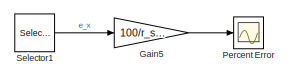
[diagram: root canvas - part 1/3, top right region]
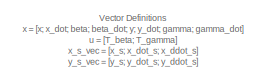
[diagram: root canvas - part 2/3, middle left region]
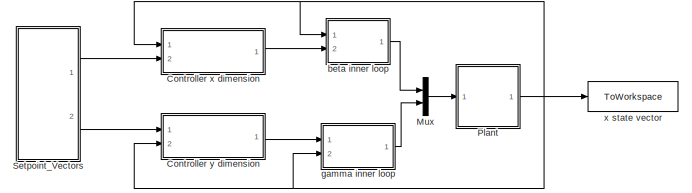
[diagram: root canvas - part 3/3, bottom left region]
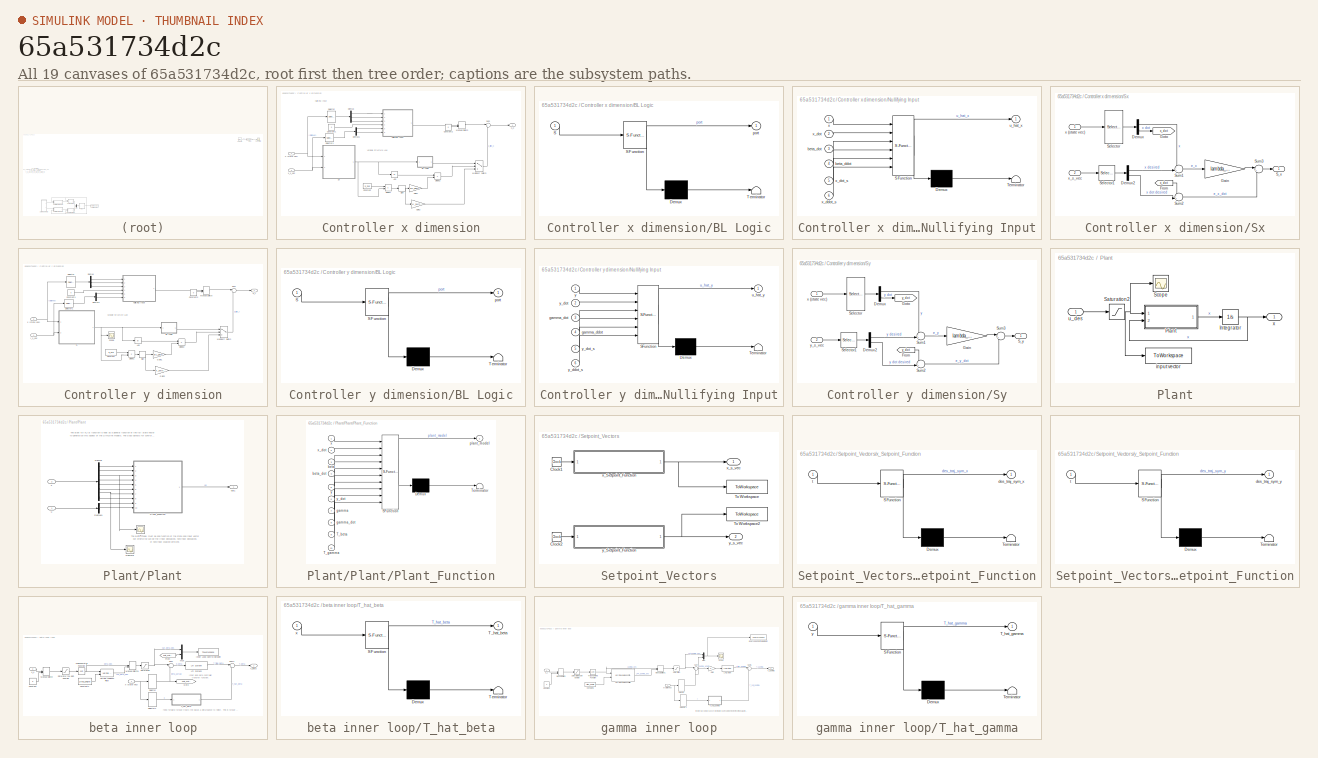
[diagram: thumbnail index - all 19 canvases of the model, root first then tree order]
MODEL slx_65a531734d2c
KIND model
CONFIG AbsTol = auto
CONFIG EnableMultiTasking = off
CONFIG FixedStep = auto
CONFIG MaxStep = auto
CONFIG MinStep = auto
CONFIG RelTol = 1e-9
CONFIG SampleTimeConstraint = Unconstrained
CONFIG SolverName = VariableStepAuto
CONFIG StartTime = 0.0
CONFIG StopTime = t_sim
BLOCK [SubSystem] Controller x dimension
  Ports = [2, 1]
  RequestExecContextInheritance = off
BLOCK [Abs] Controller x dimension/Abs
  SaturateOnIntegerOverflow = off
BLOCK [SubSystem] Controller x dimension/BL Logic
  ErrorFcn = Stateflow.Translate.translate
  PermitHierarchicalResolution = ExplicitOnly
  Ports = [1, 1]
  RequestExecContextInheritance = off
  SFBlockType = MATLAB Function
  TreatAsAtomicUnit = on
BLOCK [Demux] Controller x dimension/BL Logic/ Demux 
  Outputs = 1
  Ports = [1, 1]
BLOCK [S-Function] Controller x dimension/BL Logic/ SFunction 
  EnableBusSupport = on
  FunctionName = sf_sfun
  Parameters = S_BL_value
  PortCounts = [1 2]
  Ports = [1, 2]
  SFcnIsStateOwnerBlock = off
  SFunctionDeploymentMode = off
  Tag = Stateflow S-Function 12
BLOCK [Terminator] Controller x dimension/BL Logic/ Terminator 
BLOCK [Inport] Controller x dimension/BL Logic/S
BLOCK [Outport] Controller x dimension/BL Logic/port
BLOCK [Constant] Controller x dimension/Constant
  Value = b_Sxd
BLOCK [Constant] Controller x dimension/Constant1
  Value = 0
BLOCK [Constant] Controller x dimension/Constant2
  Value = 0
BLOCK [Demux] Controller x dimension/Demux
  Outputs = 3
  Ports = [1, 3]
BLOCK [Demux] Controller x dimension/Demux1
  Outputs = 2
  Ports = [1, 2]
BLOCK [Product] Controller x dimension/Divide1
  Inputs = **
  Ports = [2, 1]
BLOCK [Product] Controller x dimension/Divide2
  Inputs = **
  Ports = [2, 1]
BLOCK [Gain] Controller x dimension/Gain1
  Gain = -BL_gain
BLOCK [Gain] Controller x dimension/Gain2
  Gain = -K_switch
BLOCK [ManualSwitch] Controller x dimension/Manual Switch
BLOCK [MultiPortSwitch] Controller x dimension/Multiport Switch
  InputSameDT = off
  Inputs = 2
  Ports = [3, 1]
  SaturateOnIntegerOverflow = off
BLOCK [SubSystem] Controller x dimension/Nullifying Input
  ErrorFcn = Stateflow.Translate.translate
  PermitHierarchicalResolution = ExplicitOnly
  Ports = [6, 1]
  RequestExecContextInheritance = off
  SFBlockType = MATLAB Function
  TreatAsAtomicUnit = on
BLOCK [Demux] Controller x dimension/Nullifying Input/ Demux 
  Outputs = 1
  Ports = [1, 1]
BLOCK [S-Function] Controller x dimension/Nullifying Input/ SFunction 
  EnableBusSupport = on
  FunctionName = sf_sfun
  PortCounts = [6 2]
  Ports = [6, 2]
  SFcnIsStateOwnerBlock = off
  SFunctionDeploymentMode = off
  Tag = Stateflow S-Function 9
BLOCK [Terminator] Controller x dimension/Nullifying Input/ Terminator 
BLOCK [Inport] Controller x dimension/Nullifying Input/beta_ddot
  Port = 4
BLOCK [Inport] Controller x dimension/Nullifying Input/beta_dot
  Port = 3
BLOCK [Outport] Controller x dimension/Nullifying Input/u_hat_x
BLOCK [Inport] Controller x dimension/Nullifying Input/x
BLOCK [Inport] Controller x dimension/Nullifying Input/x_ddot_s
  Port = 6
BLOCK [Inport] Controller x dimension/Nullifying Input/x_dot
  Port = 2
BLOCK [Inport] Controller x dimension/Nullifying Input/x_dot_s
  Port = 5
BLOCK [Selector] Controller x dimension/Selector
  IndexOptions = Index vector (dialog)
  Indices = [1 2 4]
  InputPortWidth = 8
  OutputSizes = 1
  Ports = [1, 1]
BLOCK [Selector] Controller x dimension/Selector1
  IndexOptions = Index vector (dialog)
  Indices = [2 3]
  InputPortWidth = 3
  OutputSizes = 1
  Ports = [1, 1]
BLOCK [Signum] Controller x dimension/Sign
BLOCK [Sum] Controller x dimension/Sum
  Inputs = |++
  Ports = [2, 1]
BLOCK [SubSystem] Controller x dimension/Sx
  Ports = [2, 1]
  RequestExecContextInheritance = off
BLOCK [Demux] Controller x dimension/Sx/Demux
  Outputs = 2
  Ports = [1, 2]
BLOCK [Demux] Controller x dimension/Sx/Demux2
  Outputs = 2
  Ports = [1, 2]
BLOCK [From] Controller x dimension/Sx/From
  GotoTag = x_dot
BLOCK [Gain] Controller x dimension/Sx/Gain
  Gain = lambda_x_num
BLOCK [Goto] Controller x dimension/Sx/Goto
  GotoTag = x_dot
BLOCK [Outport] Controller x dimension/Sx/S_x
BLOCK [Selector] Controller x dimension/Sx/Selector
  IndexOptions = Index vector (dialog)
  Indices = [1 2]
  InputPortWidth = 8
  OutputSizes = 1
  Ports = [1, 1]
BLOCK [Selector] Controller x dimension/Sx/Selector1
  IndexOptions = Index vector (dialog)
  Indices = [1 2]
  InputPortWidth = 3
  OutputSizes = 1
  Ports = [1, 1]
BLOCK [Sum] Controller x dimension/Sx/Sum1
  Inputs = -+|
  Ports = [2, 1]
BLOCK [Sum] Controller x dimension/Sx/Sum2
  Inputs = -+|
  Ports = [2, 1]
BLOCK [Sum] Controller x dimension/Sx/Sum3
  Inputs = |++
  Ports = [2, 1]
BLOCK [Inport] Controller x dimension/Sx/x (state vec)
BLOCK [Inport] Controller x dimension/Sx/x_s_vec
  Port = 2
BLOCK [Outport] Controller x dimension/u_x
BLOCK [Inport] Controller x dimension/x (state vec)
BLOCK [Inport] Controller x dimension/x_s_vec
  Port = 2
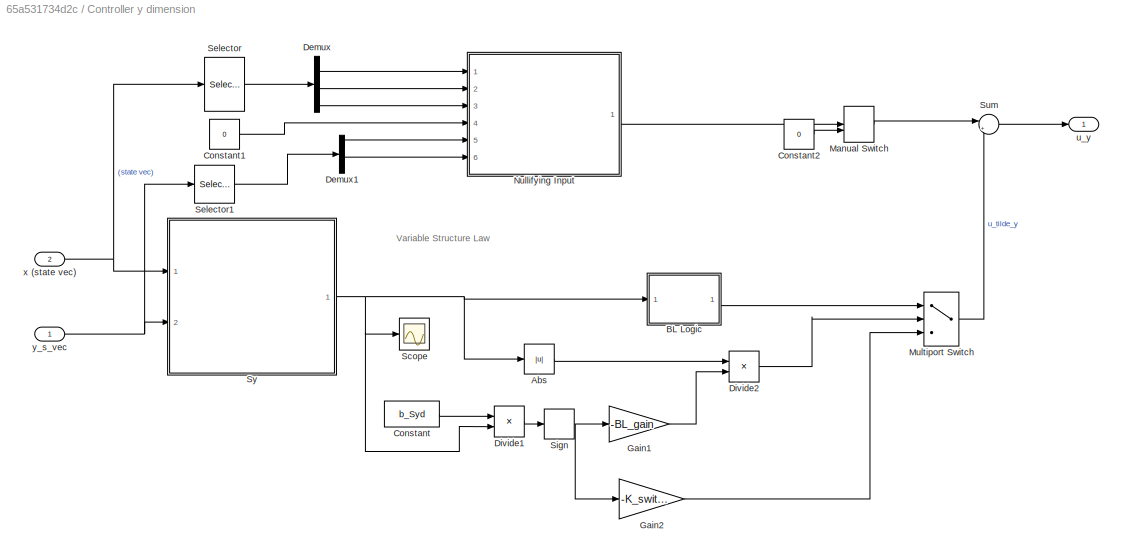
BLOCK [SubSystem] Controller y dimension
  NameLocation = top
  Ports = [2, 1]
  RequestExecContextInheritance = off
BLOCK [Abs] Controller y dimension/Abs
  SaturateOnIntegerOverflow = off
BLOCK [SubSystem] Controller y dimension/BL Logic
  ErrorFcn = Stateflow.Translate.translate
  PermitHierarchicalResolution = ExplicitOnly
  Ports = [1, 1]
  RequestExecContextInheritance = off
  SFBlockType = MATLAB Function
  TreatAsAtomicUnit = on
BLOCK [Demux] Controller y dimension/BL Logic/ Demux 
  Outputs = 1
  Ports = [1, 1]
BLOCK [S-Function] Controller y dimension/BL Logic/ SFunction 
  EnableBusSupport = on
  FunctionName = sf_sfun
  Parameters = S_BL_value
  PortCounts = [1 2]
  Ports = [1, 2]
  SFcnIsStateOwnerBlock = off
  SFunctionDeploymentMode = off
  Tag = Stateflow S-Function 7
BLOCK [Terminator] Controller y dimension/BL Logic/ Terminator 
BLOCK [Inport] Controller y dimension/BL Logic/S
BLOCK [Outport] Controller y dimension/BL Logic/port
BLOCK [Constant] Controller y dimension/Constant
  Value = b_Syd
BLOCK [Constant] Controller y dimension/Constant1
  Value = 0
BLOCK [Constant] Controller y dimension/Constant2
  Value = 0
BLOCK [Demux] Controller y dimension/Demux
  Outputs = 3
  Ports = [1, 3]
BLOCK [Demux] Controller y dimension/Demux1
  Outputs = 2
  Ports = [1, 2]
BLOCK [Product] Controller y dimension/Divide1
  Inputs = **
  Ports = [2, 1]
BLOCK [Product] Controller y dimension/Divide2
  Inputs = **
  Ports = [2, 1]
BLOCK [Gain] Controller y dimension/Gain1
  Gain = -BL_gain
BLOCK [Gain] Controller y dimension/Gain2
  Gain = -K_switch
BLOCK [ManualSwitch] Controller y dimension/Manual Switch
BLOCK [MultiPortSwitch] Controller y dimension/Multiport Switch
  InputSameDT = off
  Inputs = 2
  Ports = [3, 1]
  SaturateOnIntegerOverflow = off
BLOCK [SubSystem] Controller y dimension/Nullifying Input
  ErrorFcn = Stateflow.Translate.translate
  PermitHierarchicalResolution = ExplicitOnly
  Ports = [6, 1]
  RequestExecContextInheritance = off
  SFBlockType = MATLAB Function
  TreatAsAtomicUnit = on
BLOCK [Demux] Controller y dimension/Nullifying Input/ Demux 
  Outputs = 1
  Ports = [1, 1]
BLOCK [S-Function] Controller y dimension/Nullifying Input/ SFunction 
  EnableBusSupport = on
  FunctionName = sf_sfun
  PortCounts = [6 2]
  Ports = [6, 2]
  SFcnIsStateOwnerBlock = off
  SFunctionDeploymentMode = off
  Tag = Stateflow S-Function 4
BLOCK [Terminator] Controller y dimension/Nullifying Input/ Terminator 
BLOCK [Inport] Controller y dimension/Nullifying Input/gamma_ddot
  Port = 4
BLOCK [Inport] Controller y dimension/Nullifying Input/gamma_dot
  Port = 3
BLOCK [Outport] Controller y dimension/Nullifying Input/u_hat_y
BLOCK [Inport] Controller y dimension/Nullifying Input/y
BLOCK [Inport] Controller y dimension/Nullifying Input/y_ddot_s
  Port = 6
BLOCK [Inport] Controller y dimension/Nullifying Input/y_dot
  Port = 2
BLOCK [Inport] Controller y dimension/Nullifying Input/y_dot_s
  Port = 5
BLOCK [Scope] Controller y dimension/Scope
  Floating = off
  NumInputPorts = 1
  Ports = [1]
  ScopeSpecificationString = Simulink.scopes.TimeScopeBlockCfg('CurrentConfiguration', extmgr.ConfigurationSet(extmgr.Configuration('Core','General UI',true),extmgr.Configuration('Core','Source UI',true),extmgr.Configuration('Sources','WiredSimulink',true,'DataLoggingVariableName','ScopeData1'),extmgr.Configuration('Visuals','Time Domain',true,'SerializedDisplays',{struct('MinYLimReal','-0.5677','MaxYLimReal','2.96406','YLabe...<+1432ch>
BLOCK [Selector] Controller y dimension/Selector
  IndexOptions = Index vector (dialog)
  Indices = [5 6 8]
  InputPortWidth = 8
  OutputSizes = 1
  Ports = [1, 1]
BLOCK [Selector] Controller y dimension/Selector1
  IndexOptions = Index vector (dialog)
  Indices = [2 3]
  InputPortWidth = 3
  OutputSizes = 1
  Ports = [1, 1]
BLOCK [Signum] Controller y dimension/Sign
BLOCK [Sum] Controller y dimension/Sum
  Inputs = |++
  Ports = [2, 1]
BLOCK [SubSystem] Controller y dimension/Sy
  Ports = [2, 1]
  RequestExecContextInheritance = off
BLOCK [Demux] Controller y dimension/Sy/Demux
  Outputs = 2
  Ports = [1, 2]
BLOCK [Demux] Controller y dimension/Sy/Demux2
  Outputs = 2
  Ports = [1, 2]
BLOCK [From] Controller y dimension/Sy/From
  GotoTag = y_dot
BLOCK [Gain] Controller y dimension/Sy/Gain
  Gain = lambda_x_num
BLOCK [Goto] Controller y dimension/Sy/Goto
  GotoTag = y_dot
BLOCK [Outport] Controller y dimension/Sy/S_y
BLOCK [Selector] Controller y dimension/Sy/Selector
  IndexOptions = Index vector (dialog)
  Indices = [5 6]
  InputPortWidth = 8
  OutputSizes = 1
  Ports = [1, 1]
BLOCK [Selector] Controller y dimension/Sy/Selector1
  IndexOptions = Index vector (dialog)
  Indices = [1 2]
  InputPortWidth = 3
  OutputSizes = 1
  Ports = [1, 1]
BLOCK [Sum] Controller y dimension/Sy/Sum1
  Inputs = -+|
  Ports = [2, 1]
BLOCK [Sum] Controller y dimension/Sy/Sum2
  Inputs = -+|
  Ports = [2, 1]
BLOCK [Sum] Controller y dimension/Sy/Sum3
  Inputs = |++
  Ports = [2, 1]
BLOCK [Inport] Controller y dimension/Sy/x (state vec)
BLOCK [Inport] Controller y dimension/Sy/y_s_vec
  Port = 2
BLOCK [Outport] Controller y dimension/u_y
BLOCK [Inport] Controller y dimension/x (state vec)
  Port = 2
BLOCK [Inport] Controller y dimension/y_s_vec
BLOCK [Gain] Gain5
  Commented = on
  Gain = 100/r_sim
BLOCK [Mux] Mux
  DisplayOption = bar
  Inputs = 2
  Ports = [2, 1]
BLOCK [Scope] Percent Error
  Commented = on
  Floating = off
  NumInputPorts = 1
  Ports = [1]
  ScopeSpecificationString = Simulink.scopes.TimeScopeBlockCfg('CurrentConfiguration', extmgr.ConfigurationSet(extmgr.Configuration('Core','General UI',true),extmgr.Configuration('Core','Source UI',true),extmgr.Configuration('Sources','WiredSimulink',true,'DataLoggingVariableName','ScopeData2'),extmgr.Configuration('Visuals','Time Domain',true,'SerializedDisplays',{struct('MinYLimReal','-1.29449','MaxYLimReal','1.86814','YLab...<+1556ch>
BLOCK [SubSystem] Plant
  Ports = [1, 1]
  RequestExecContextInheritance = off
BLOCK [Integrator] Plant/Integrator
  InitialCondition = x_0
  Ports = [1, 1]
BLOCK [SubSystem] Plant/Plant
  Ports = [2, 1]
  RequestExecContextInheritance = off
BLOCK [Scope] Plant/Plant/Beta
  Floating = off
  NumInputPorts = 1
  Ports = [1]
  ScopeSpecificationString = Simulink.scopes.TimeScopeBlockCfg('CurrentConfiguration', extmgr.ConfigurationSet(extmgr.Configuration('Core','General UI',true),extmgr.Configuration('Core','Source UI',true),extmgr.Configuration('Sources','WiredSimulink',true,'DataLoggingVariableName','ScopeData2'),extmgr.Configuration('Visuals','Time Domain',true,'SerializedDisplays',{struct('MinYLimReal','-0.09593','MaxYLimReal','0.09557','YLab...<+1391ch>
BLOCK [Demux] Plant/Plant/Demux
  Outputs = 8
  Ports = [1, 8]
BLOCK [Demux] Plant/Plant/Demux1
  Outputs = 2
  Ports = [1, 2]
BLOCK [Scope] Plant/Plant/Gamma
  Floating = off
  NumInputPorts = 1
  Ports = [1]
  ScopeSpecificationString = Simulink.scopes.TimeScopeBlockCfg('CurrentConfiguration', extmgr.ConfigurationSet(extmgr.Configuration('Core','General UI',true),extmgr.Configuration('Core','Source UI',true),extmgr.Configuration('Sources','WiredSimulink',true,'DataLoggingVariableName','ScopeData1'),extmgr.Configuration('Visuals','Time Domain',true),extmgr.Configuration('Tools','Plot Navigation',true),extmgr.Configuration('Tools',...<+40ch>
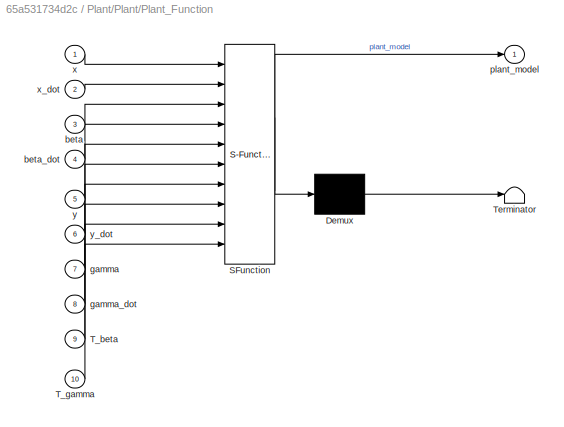
BLOCK [SubSystem] Plant/Plant/Plant_Function
  ErrorFcn = Stateflow.Translate.translate
  PermitHierarchicalResolution = ExplicitOnly
  Ports = [10, 1]
  RequestExecContextInheritance = off
  SFBlockType = MATLAB Function
  TreatAsAtomicUnit = on
BLOCK [Demux] Plant/Plant/Plant_Function/ Demux 
  Outputs = 1
  Ports = [1, 1]
BLOCK [S-Function] Plant/Plant/Plant_Function/ SFunction 
  EnableBusSupport = on
  FunctionName = sf_sfun
  PortCounts = [10 2]
  Ports = [10, 2]
  SFcnIsStateOwnerBlock = off
  SFunctionDeploymentMode = off
  Tag = Stateflow S-Function 1
BLOCK [Terminator] Plant/Plant/Plant_Function/ Terminator 
BLOCK [Inport] Plant/Plant/Plant_Function/T_beta
  Port = 9
BLOCK [Inport] Plant/Plant/Plant_Function/T_gamma
  Port = 10
BLOCK [Inport] Plant/Plant/Plant_Function/beta
  Port = 3
BLOCK [Inport] Plant/Plant/Plant_Function/beta_dot
  Port = 4
BLOCK [Inport] Plant/Plant/Plant_Function/gamma
  Port = 7
BLOCK [Inport] Plant/Plant/Plant_Function/gamma_dot
  Port = 8
BLOCK [Outport] Plant/Plant/Plant_Function/plant_model
BLOCK [Inport] Plant/Plant/Plant_Function/x
BLOCK [Inport] Plant/Plant/Plant_Function/x_dot
  Port = 2
BLOCK [Inport] Plant/Plant/Plant_Function/y
  Port = 5
BLOCK [Inport] Plant/Plant/Plant_Function/y_dot
  Port = 6
BLOCK [Outport] Plant/Plant/out1
BLOCK [Inport] Plant/Plant/u
BLOCK [Inport] Plant/Plant/x
  Port = 2
BLOCK [Saturate] Plant/Saturation2
  LowerLimit = -Tmax
  UpperLimit = Tmax
  ZeroCross = off
BLOCK [Scope] Plant/Scope
  Floating = off
  NumInputPorts = 1
  Ports = [1]
  ScopeSpecificationString = Simulink.scopes.TimeScopeBlockCfg('CurrentConfiguration', extmgr.ConfigurationSet(extmgr.Configuration('Core','General UI',true),extmgr.Configuration('Core','Source UI',true),extmgr.Configuration('Sources','WiredSimulink',true,'DataLoggingVariableName','ScopeData4'),extmgr.Configuration('Visuals','Time Domain',true,'SerializedDisplays',{struct('MinYLimReal','-1.875','MaxYLimReal','1.875','YLabelRe...<+1700ch>
BLOCK [ToWorkspace] Plant/input vector
  FixptAsFi = on
  MaxDataPoints = inf
  Ports = [1]
  SampleTime = -1
  VariableName = u
BLOCK [Inport] Plant/u_des
BLOCK [Outport] Plant/x
BLOCK [Selector] Selector1
  Commented = on
  IndexOptions = Index vector (dialog)
  Indices = [1]
  InputPortWidth = 5
  OutputSizes = 1
  Ports = [1, 1]
BLOCK [SubSystem] Setpoint_Vectors
  Ports = [0, 2]
  RequestExecContextInheritance = off
BLOCK [Clock] Setpoint_Vectors/Clock1
BLOCK [Clock] Setpoint_Vectors/Clock2
BLOCK [ToWorkspace] Setpoint_Vectors/To Workspace
  FixptAsFi = on
  MaxDataPoints = inf
  Ports = [1]
  SampleTime = -1
  VariableName = x_s_vec
BLOCK [ToWorkspace] Setpoint_Vectors/To Workspace2
  FixptAsFi = on
  MaxDataPoints = inf
  Ports = [1]
  SampleTime = -1
  VariableName = y_s_vec
BLOCK [SubSystem] Setpoint_Vectors/x_Setpoint_Function
  ErrorFcn = Stateflow.Translate.translate
  PermitHierarchicalResolution = ExplicitOnly
  Ports = [1, 1]
  RequestExecContextInheritance = off
  SFBlockType = MATLAB Function
  TreatAsAtomicUnit = on
BLOCK [Demux] Setpoint_Vectors/x_Setpoint_Function/ Demux 
  Outputs = 1
  Ports = [1, 1]
BLOCK [S-Function] Setpoint_Vectors/x_Setpoint_Function/ SFunction 
  EnableBusSupport = on
  FunctionName = sf_sfun
  PortCounts = [1 2]
  Ports = [1, 2]
  SFcnIsStateOwnerBlock = off
  SFunctionDeploymentMode = off
  Tag = Stateflow S-Function 2
BLOCK [Terminator] Setpoint_Vectors/x_Setpoint_Function/ Terminator 
BLOCK [Outport] Setpoint_Vectors/x_Setpoint_Function/des_traj_sym_x
BLOCK [Inport] Setpoint_Vectors/x_Setpoint_Function/t
BLOCK [Outport] Setpoint_Vectors/x_s_vec
BLOCK [SubSystem] Setpoint_Vectors/y_Setpoint_Function
  ErrorFcn = Stateflow.Translate.translate
  PermitHierarchicalResolution = ExplicitOnly
  Ports = [1, 1]
  RequestExecContextInheritance = off
  SFBlockType = MATLAB Function
  TreatAsAtomicUnit = on
BLOCK [Demux] Setpoint_Vectors/y_Setpoint_Function/ Demux 
  Outputs = 1
  Ports = [1, 1]
BLOCK [S-Function] Setpoint_Vectors/y_Setpoint_Function/ SFunction 
  EnableBusSupport = on
  FunctionName = sf_sfun
  PortCounts = [1 2]
  Ports = [1, 2]
  SFcnIsStateOwnerBlock = off
  SFunctionDeploymentMode = off
  Tag = Stateflow S-Function 3
BLOCK [Terminator] Setpoint_Vectors/y_Setpoint_Function/ Terminator 
BLOCK [Outport] Setpoint_Vectors/y_Setpoint_Function/des_traj_sym_y
BLOCK [Inport] Setpoint_Vectors/y_Setpoint_Function/t
BLOCK [Outport] Setpoint_Vectors/y_s_vec
  Port = 2
BLOCK [SubSystem] beta inner loop
  Ports = [2, 1]
  RequestExecContextInheritance = off
BLOCK [Constant] beta inner loop/Constant
  Value = 0
BLOCK [Constant] beta inner loop/Constant1
  Value = 1/tau_angle
BLOCK [From] beta inner loop/From
  GotoTag = beta_actual
BLOCK [Goto] beta inner loop/Goto
  GotoTag = beta_actual
BLOCK [ToWorkspace] beta inner loop/Inner Loop Control Setpoint
  FixptAsFi = on
  MaxDataPoints = inf
  Ports = [1]
  SampleTime = -1
  VariableName = ILC_beta
BLOCK [Reference] beta inner loop/LTI System  REF=cstblocks/LTI System
  Ports = [1, 1]
  SourceBlock = cstblocks/LTI System
  SourceProductBaseCode = CT
  SourceType = LTI Block
BLOCK [ManualSwitch] beta inner loop/Manual Switch
BLOCK [ManualSwitch] beta inner loop/Manual Switch1
  CurrentSetting = 0
BLOCK [Mux] beta inner loop/Mux
  DisplayOption = bar
  Inputs = 2
  Ports = [2, 1]
BLOCK [Saturate] beta inner loop/Saturate the asin domain
  LowerLimit = -1
  UpperLimit = 1
BLOCK [Saturate] beta inner loop/Saturation
  LowerLimit = -Angle_max
  UpperLimit = Angle_max
BLOCK [Selector] beta inner loop/Selector
  IndexOptions = Index vector (dialog)
  Indices = [3]
  InputPortWidth = 8
  OutputSizes = 1
  Ports = [1, 1]
BLOCK [Selector] beta inner loop/Selector1
  IndexOptions = Index vector (dialog)
  Indices = [1]
  InputPortWidth = 8
  OutputSizes = 1
  Ports = [1, 1]
BLOCK [Sum] beta inner loop/Sum
  Inputs = |+-
  Ports = [2, 1]
BLOCK [Sum] beta inner loop/Sum1
  Inputs = |++
  Ports = [2, 1]
BLOCK [Outport] beta inner loop/T_beta
BLOCK [SubSystem] beta inner loop/T_hat_beta
  ErrorFcn = Stateflow.Translate.translate
  PermitHierarchicalResolution = ExplicitOnly
  Ports = [1, 1]
  RequestExecContextInheritance = off
  SFBlockType = MATLAB Function
  TreatAsAtomicUnit = on
BLOCK [Demux] beta inner loop/T_hat_beta/ Demux 
  Outputs = 1
  Ports = [1, 1]
BLOCK [S-Function] beta inner loop/T_hat_beta/ SFunction 
  EnableBusSupport = on
  FunctionName = sf_sfun
  PortCounts = [1 2]
  Ports = [1, 2]
  SFcnIsStateOwnerBlock = off
  SFunctionDeploymentMode = off
  Tag = Stateflow S-Function 5
BLOCK [Terminator] beta inner loop/T_hat_beta/ Terminator 
BLOCK [Outport] beta inner loop/T_hat_beta/T_hat_beta
BLOCK [Inport] beta inner loop/T_hat_beta/x
BLOCK [Trigonometry] beta inner loop/Trigonometric Function
  Operator = asin
  Ports = [1, 1]
BLOCK [Reference] beta inner loop/Varying Lowpass Filter  REF=cstblocks/Linear Parameter Varying/Varying Lowpass Filter
  Ports = [2, 1]
  SourceBlock = cstblocks/Linear Parameter Varying/Varying Lowpass Filter
  SourceProductBaseCode = CT
  SourceType = Varying Lowpass Filter
BLOCK [Inport] beta inner loop/u_x
  Port = 2
BLOCK [Inport] beta inner loop/x (state vec)
BLOCK [SubSystem] gamma inner loop
  Ports = [2, 1]
  RequestExecContextInheritance = off
BLOCK [Constant] gamma inner loop/Constant
  Value = 0
BLOCK [Constant] gamma inner loop/Constant1
  Value = 1/tau_angle
BLOCK [Gain] gamma inner loop/Gain
BLOCK [ToWorkspace] gamma inner loop/Inner Loop Control Setpoint
  FixptAsFi = on
  MaxDataPoints = inf
  Ports = [1]
  SampleTime = -1
  VariableName = ILC_gamma
BLOCK [Reference] gamma inner loop/LTI System  REF=cstblocks/LTI System
  Ports = [1, 1]
  SourceBlock = cstblocks/LTI System
  SourceProductBaseCode = CT
  SourceType = LTI Block
BLOCK [ManualSwitch] gamma inner loop/Manual Switch
BLOCK [ManualSwitch] gamma inner loop/Manual Switch1
  CurrentSetting = 0
BLOCK [Mux] gamma inner loop/Mux
  DisplayOption = bar
  Inputs = 2
  Ports = [2, 1]
BLOCK [Saturate] gamma inner loop/Saturate the asin domain
  LowerLimit = -1
  UpperLimit = 1
BLOCK [Saturate] gamma inner loop/Saturation
  LowerLimit = -Angle_max
  UpperLimit = Angle_max
BLOCK [Scope] gamma inner loop/Scope
  Floating = off
  NumInputPorts = 1
  Ports = [1]
  ScopeSpecificationString = Simulink.scopes.TimeScopeBlockCfg('CurrentConfiguration', extmgr.ConfigurationSet(extmgr.Configuration('Core','General UI',true),extmgr.Configuration('Core','Source UI',true),extmgr.Configuration('Sources','WiredSimulink',true,'DataLoggingVariableName','ScopeData1'),extmgr.Configuration('Visuals','Time Domain',true,'SerializedDisplays',{struct('MinYLimReal','-0.33681','MaxYLimReal','0.29657','YLab...<+1459ch>
BLOCK [Selector] gamma inner loop/Selector
  IndexOptions = Index vector (dialog)
  Indices = [7]
  InputPortWidth = 8
  OutputSizes = 1
  Ports = [1, 1]
BLOCK [Selector] gamma inner loop/Selector1
  IndexOptions = Index vector (dialog)
  Indices = [5]
  InputPortWidth = 8
  OutputSizes = 1
  Ports = [1, 1]
BLOCK [Sum] gamma inner loop/Sum
  Inputs = |+-
  Ports = [2, 1]
BLOCK [Sum] gamma inner loop/Sum1
  Inputs = |++
  Ports = [2, 1]
BLOCK [Outport] gamma inner loop/T_gamma
BLOCK [SubSystem] gamma inner loop/T_hat_gamma
  ErrorFcn = Stateflow.Translate.translate
  PermitHierarchicalResolution = ExplicitOnly
  Ports = [1, 1]
  RequestExecContextInheritance = off
  SFBlockType = MATLAB Function
  TreatAsAtomicUnit = on
BLOCK [Demux] gamma inner loop/T_hat_gamma/ Demux 
  Outputs = 1
  Ports = [1, 1]
BLOCK [S-Function] gamma inner loop/T_hat_gamma/ SFunction 
  EnableBusSupport = on
  FunctionName = sf_sfun
  PortCounts = [1 2]
  Ports = [1, 2]
  SFcnIsStateOwnerBlock = off
  SFunctionDeploymentMode = off
  Tag = Stateflow S-Function 6
BLOCK [Terminator] gamma inner loop/T_hat_gamma/ Terminator 
BLOCK [Outport] gamma inner loop/T_hat_gamma/T_hat_gamma
BLOCK [Inport] gamma inner loop/T_hat_gamma/y
BLOCK [Trigonometry] gamma inner loop/Trigonometric Function
  Operator = asin
  Ports = [1, 1]
BLOCK [Reference] gamma inner loop/Varying Lowpass Filter  REF=cstblocks/Linear Parameter Varying/Varying Lowpass Filter
  Ports = [2, 1]
  SourceBlock = cstblocks/Linear Parameter Varying/Varying Lowpass Filter
  SourceProductBaseCode = CT
  SourceType = Varying Lowpass Filter
BLOCK [Inport] gamma inner loop/u_y
BLOCK [Inport] gamma inner loop/x (state vec)
  Port = 2
BLOCK [ToWorkspace] x state vector
  FixptAsFi = on
  MaxDataPoints = inf
  Ports = [1]
  SampleTime = -1
  VariableName = x
ANNOTATION (root): Vector Definitions x = [x; x_dot; beta; beta_dot; y; y_dot; gamma; gamma_dot] u = [T_beta; T_gamma] x_s_vec = [x_s; x_dot_s; x_ddot_s] y_s_vec = [y_s; y_dot_s; y_ddot_s]
ANNOTATION Controller x dimension: Compute Sliding Variable
ANNOTATION Controller x dimension: Nullifying Input
ANNOTATION Controller x dimension: Variable Structure Law
ANNOTATION Controller y dimension: Variable Structure Law
ANNOTATION Plant/Plant: The plant MATLAB function is kept as a general function of the full state vector to generalize this aspect of the Simulink models. The class objects for controllers must define this function in terms of all possible inputs. It is ok for certain inputs to be unused.
ANNOTATION Plant/Plant: The plant model must be and function of the state and input vector but otherwise can be the linear decoupled, nonlinear decoupled, or nonlinear coupled versions
ANNOTATION beta inner loop: Inner loop beta controller transfer function.
ANNOTATION beta inner loop: feed forward torque treats the ball as a disturbance to reject. This is torque is derived from the linear model.
ANNOTATION gamma inner loop: feed forward disturbance rejecting torque treats the moment from the ball acting on the plate as a disturbance
LINE Controller x dimension/Abs:1 -> Controller x dimension/Divide2:1
LINE Controller x dimension/BL Logic:1 -> Controller x dimension/Multiport Switch:1
LINE Controller x dimension/Constant1:1 -> Controller x dimension/Nullifying Input:4
LINE Controller x dimension/Constant2:1 -> Controller x dimension/Manual Switch:2
LINE Controller x dimension/Constant:1 -> Controller x dimension/Divide1:1
LINE Controller x dimension/Demux1:1 -> Controller x dimension/Nullifying Input:5
LINE Controller x dimension/Demux1:2 -> Controller x dimension/Nullifying Input:6
LINE Controller x dimension/Demux:1 -> Controller x dimension/Nullifying Input:1
LINE Controller x dimension/Demux:2 -> Controller x dimension/Nullifying Input:2
LINE Controller x dimension/Demux:3 -> Controller x dimension/Nullifying Input:3
LINE Controller x dimension/Divide1:1 -> Controller x dimension/Sign:1
LINE Controller x dimension/Divide2:1 -> Controller x dimension/Multiport Switch:2
LINE Controller x dimension/Gain1:1 -> Controller x dimension/Divide2:2
LINE Controller x dimension/Gain2:1 -> Controller x dimension/Multiport Switch:3
LINE Controller x dimension/Manual Switch:1 -> Controller x dimension/Sum:1
LINE Controller x dimension/Multiport Switch:1 -> Controller x dimension/Sum:2
LINE Controller x dimension/Nullifying Input:1 -> Controller x dimension/Manual Switch:1
LINE Controller x dimension/Selector1:1 -> Controller x dimension/Demux1:1
LINE Controller x dimension/Selector:1 -> Controller x dimension/Demux:1
NET Controller x dimension/Sign:1 -> Controller x dimension/Gain1:1, Controller x dimension/Gain2:1
LINE Controller x dimension/Sum:1 -> Controller x dimension/u_x:1
LINE Controller x dimension/Sx/Demux2:1 -> Controller x dimension/Sx/Sum1:2
LINE Controller x dimension/Sx/Demux2:2 -> Controller x dimension/Sx/Sum2:2
LINE Controller x dimension/Sx/Demux:1 -> Controller x dimension/Sx/Sum1:1
LINE Controller x dimension/Sx/Demux:2 -> Controller x dimension/Sx/Goto:1
LINE Controller x dimension/Sx/From:1 -> Controller x dimension/Sx/Sum2:1
LINE Controller x dimension/Sx/Gain:1 -> Controller x dimension/Sx/Sum3:1
LINE Controller x dimension/Sx/Selector1:1 -> Controller x dimension/Sx/Demux2:1
LINE Controller x dimension/Sx/Selector:1 -> Controller x dimension/Sx/Demux:1
LINE Controller x dimension/Sx/Sum1:1 -> Controller x dimension/Sx/Gain:1
LINE Controller x dimension/Sx/Sum2:1 -> Controller x dimension/Sx/Sum3:2
LINE Controller x dimension/Sx/Sum3:1 -> Controller x dimension/Sx/S_x:1
LINE Controller x dimension/Sx/x (state vec):1 -> Controller x dimension/Sx/Selector:1
LINE Controller x dimension/Sx/x_s_vec:1 -> Controller x dimension/Sx/Selector1:1
NET Controller x dimension/Sx:1 -> Controller x dimension/Abs:1, Controller x dimension/BL Logic:1, Controller x dimension/Divide1:2
NET Controller x dimension/x (state vec):1 -> Controller x dimension/Selector:1, Controller x dimension/Sx:1
NET Controller x dimension/x_s_vec:1 -> Controller x dimension/Selector1:1, Controller x dimension/Sx:2
LINE Controller x dimension:1 -> beta inner loop:2
LINE Controller y dimension/Abs:1 -> Controller y dimension/Divide2:1
LINE Controller y dimension/BL Logic:1 -> Controller y dimension/Multiport Switch:1
LINE Controller y dimension/Constant1:1 -> Controller y dimension/Nullifying Input:4
LINE Controller y dimension/Constant2:1 -> Controller y dimension/Manual Switch:2
LINE Controller y dimension/Constant:1 -> Controller y dimension/Divide1:1
LINE Controller y dimension/Demux1:1 -> Controller y dimension/Nullifying Input:5
LINE Controller y dimension/Demux1:2 -> Controller y dimension/Nullifying Input:6
LINE Controller y dimension/Demux:1 -> Controller y dimension/Nullifying Input:1
LINE Controller y dimension/Demux:2 -> Controller y dimension/Nullifying Input:2
LINE Controller y dimension/Demux:3 -> Controller y dimension/Nullifying Input:3
LINE Controller y dimension/Divide1:1 -> Controller y dimension/Sign:1
LINE Controller y dimension/Divide2:1 -> Controller y dimension/Multiport Switch:2
LINE Controller y dimension/Gain1:1 -> Controller y dimension/Divide2:2
LINE Controller y dimension/Gain2:1 -> Controller y dimension/Multiport Switch:3
LINE Controller y dimension/Manual Switch:1 -> Controller y dimension/Sum:1
LINE Controller y dimension/Multiport Switch:1 -> Controller y dimension/Sum:2
LINE Controller y dimension/Nullifying Input:1 -> Controller y dimension/Manual Switch:1
LINE Controller y dimension/Selector1:1 -> Controller y dimension/Demux1:1
LINE Controller y dimension/Selector:1 -> Controller y dimension/Demux:1
NET Controller y dimension/Sign:1 -> Controller y dimension/Gain1:1, Controller y dimension/Gain2:1
LINE Controller y dimension/Sum:1 -> Controller y dimension/u_y:1
LINE Controller y dimension/Sy/Demux2:1 -> Controller y dimension/Sy/Sum1:2
LINE Controller y dimension/Sy/Demux2:2 -> Controller y dimension/Sy/Sum2:2
LINE Controller y dimension/Sy/Demux:1 -> Controller y dimension/Sy/Sum1:1
LINE Controller y dimension/Sy/Demux:2 -> Controller y dimension/Sy/Goto:1
LINE Controller y dimension/Sy/From:1 -> Controller y dimension/Sy/Sum2:1
LINE Controller y dimension/Sy/Gain:1 -> Controller y dimension/Sy/Sum3:1
LINE Controller y dimension/Sy/Selector1:1 -> Controller y dimension/Sy/Demux2:1
LINE Controller y dimension/Sy/Selector:1 -> Controller y dimension/Sy/Demux:1
LINE Controller y dimension/Sy/Sum1:1 -> Controller y dimension/Sy/Gain:1
LINE Controller y dimension/Sy/Sum2:1 -> Controller y dimension/Sy/Sum3:2
LINE Controller y dimension/Sy/Sum3:1 -> Controller y dimension/Sy/S_y:1
LINE Controller y dimension/Sy/x (state vec):1 -> Controller y dimension/Sy/Selector:1
LINE Controller y dimension/Sy/y_s_vec:1 -> Controller y dimension/Sy/Selector1:1
NET Controller y dimension/Sy:1 -> Controller y dimension/Abs:1, Controller y dimension/BL Logic:1, Controller y dimension/Divide1:2, Controller y dimension/Scope:1
NET Controller y dimension/x (state vec):1 -> Controller y dimension/Selector:1, Controller y dimension/Sy:1
NET Controller y dimension/y_s_vec:1 -> Controller y dimension/Selector1:1, Controller y dimension/Sy:2
LINE Controller y dimension:1 -> gamma inner loop:1
LINE Gain5:1 -> Percent Error:1
LINE Mux:1 -> Plant:1
NET Plant/Integrator:1 -> Plant/Plant:2, Plant/x:1
LINE Plant/Plant/Demux1:1 -> Plant/Plant/Plant_Function:9
LINE Plant/Plant/Demux1:2 -> Plant/Plant/Plant_Function:10
LINE Plant/Plant/Demux:1 -> Plant/Plant/Plant_Function:1
LINE Plant/Plant/Demux:2 -> Plant/Plant/Plant_Function:2
NET Plant/Plant/Demux:3 -> Plant/Plant/Beta:1, Plant/Plant/Plant_Function:3
LINE Plant/Plant/Demux:4 -> Plant/Plant/Plant_Function:4
LINE Plant/Plant/Demux:5 -> Plant/Plant/Plant_Function:5
LINE Plant/Plant/Demux:6 -> Plant/Plant/Plant_Function:6
NET Plant/Plant/Demux:7 -> Plant/Plant/Gamma:1, Plant/Plant/Plant_Function:7
LINE Plant/Plant/Demux:8 -> Plant/Plant/Plant_Function:8
LINE Plant/Plant/Plant_Function:1 -> Plant/Plant/out1:1
LINE Plant/Plant/u:1 -> Plant/Plant/Demux1:1
LINE Plant/Plant/x:1 -> Plant/Plant/Demux:1
LINE Plant/Plant:1 -> Plant/Integrator:1
NET Plant/Saturation2:1 -> Plant/Plant:1, Plant/Scope:1, Plant/input vector:1
LINE Plant/u_des:1 -> Plant/Saturation2:1
NET Plant:1 -> Controller x dimension:1, Controller y dimension:2, beta inner loop:1, gamma inner loop:2, x state vector:1
LINE Selector1:1 -> Gain5:1
LINE Setpoint_Vectors/Clock1:1 -> Setpoint_Vectors/x_Setpoint_Function:1
LINE Setpoint_Vectors/Clock2:1 -> Setpoint_Vectors/y_Setpoint_Function:1
NET Setpoint_Vectors/x_Setpoint_Function:1 -> Setpoint_Vectors/To Workspace:1, Setpoint_Vectors/x_s_vec:1
NET Setpoint_Vectors/y_Setpoint_Function:1 -> Setpoint_Vectors/To Workspace2:1, Setpoint_Vectors/y_s_vec:1
LINE Setpoint_Vectors:1 -> Controller x dimension:2
LINE Setpoint_Vectors:2 -> Controller y dimension:1
LINE beta inner loop/Constant1:1 -> beta inner loop/Varying Lowpass Filter:2
LINE beta inner loop/Constant:1 -> beta inner loop/Manual Switch:2
LINE beta inner loop/From:1 -> beta inner loop/Mux:2
LINE beta inner loop/LTI System:1 -> beta inner loop/Sum1:1
LINE beta inner loop/Manual Switch1:1 -> beta inner loop/Saturation:1
LINE beta inner loop/Manual Switch:1 -> beta inner loop/Saturate the asin domain:1
LINE beta inner loop/Mux:1 -> beta inner loop/Inner Loop Control Setpoint:1
LINE beta inner loop/Saturate the asin domain:1 -> beta inner loop/Trigonometric Function:1
NET beta inner loop/Saturation:1 -> beta inner loop/Mux:1, beta inner loop/Sum:1
LINE beta inner loop/Selector1:1 -> beta inner loop/T_hat_beta:1
NET beta inner loop/Selector:1 -> beta inner loop/Goto:1, beta inner loop/Sum:2
LINE beta inner loop/Sum1:1 -> beta inner loop/T_beta:1
LINE beta inner loop/Sum:1 -> beta inner loop/LTI System:1
LINE beta inner loop/T_hat_beta:1 -> beta inner loop/Sum1:2
NET beta inner loop/Trigonometric Function:1 -> beta inner loop/Manual Switch1:1, beta inner loop/Varying Lowpass Filter:1
LINE beta inner loop/Varying Lowpass Filter:1 -> beta inner loop/Manual Switch1:2
LINE beta inner loop/u_x:1 -> beta inner loop/Manual Switch:1
NET beta inner loop/x (state vec):1 -> beta inner loop/Selector1:1, beta inner loop/Selector:1
LINE beta inner loop:1 -> Mux:1
LINE gamma inner loop/Constant1:1 -> gamma inner loop/Varying Lowpass Filter:2
LINE gamma inner loop/Constant:1 -> gamma inner loop/Manual Switch:2
LINE gamma inner loop/Gain:1 -> gamma inner loop/LTI System:1
LINE gamma inner loop/LTI System:1 -> gamma inner loop/Sum1:1
LINE gamma inner loop/Manual Switch1:1 -> gamma inner loop/Saturation:1
LINE gamma inner loop/Manual Switch:1 -> gamma inner loop/Saturate the asin domain:1
NET gamma inner loop/Mux:1 -> gamma inner loop/Inner Loop Control Setpoint:1, gamma inner loop/Scope:1
LINE gamma inner loop/Saturate the asin domain:1 -> gamma inner loop/Trigonometric Function:1
NET gamma inner loop/Saturation:1 -> gamma inner loop/Mux:1, gamma inner loop/Sum:1
LINE gamma inner loop/Selector1:1 -> gamma inner loop/T_hat_gamma:1
NET gamma inner loop/Selector:1 -> gamma inner loop/Mux:2, gamma inner loop/Sum:2
LINE gamma inner loop/Sum1:1 -> gamma inner loop/T_gamma:1
LINE gamma inner loop/Sum:1 -> gamma inner loop/Gain:1
LINE gamma inner loop/T_hat_gamma:1 -> gamma inner loop/Sum1:2
NET gamma inner loop/Trigonometric Function:1 -> gamma inner loop/Manual Switch1:1, gamma inner loop/Varying Lowpass Filter:1
LINE gamma inner loop/Varying Lowpass Filter:1 -> gamma inner loop/Manual Switch1:2
LINE gamma inner loop/u_y:1 -> gamma inner loop/Manual Switch:1
NET gamma inner loop/x (state vec):1 -> gamma inner loop/Selector1:1, gamma inner loop/Selector:1
LINE gamma inner loop:1 -> Mux:2
note: NET lines group one-source signal fan-out (src -> all destinations, sorted); 1:1 wires keep LINE
CHART Plant/Plant/Plant_Function states=1 transitions=1
  STATE_LABEL 'eML_blk_kernel()'
  STATE_LABEL 'SCRIPT:\nfunction plant_model = xdot(x,x_dot,beta,beta_dot,y,y_dot,gamma,gamma_dot,T_beta,T_gamma)\n%#codegen\n\n%    This function was generated by the Symbolic Math Toolbox version 9.1.\n%    03-Nov-2022 15:11:18\n\nt2 = cos(beta);\nt3 = cos(gamma);\nt4 = sin(beta);\nt5 = sin(gamma);\nt6 = beta_dot.^2;\nt7 = gamma_dot.^2;\nt8 = x.^2;\nt9 = x.^3;\nt10 = y.^2;\nt11 = y.^3;\nt13 = y.^5;\nt12 = t10.^2;\nt14 = t3.^2;\nt...<+3608ch>'
CHART Setpoint_Vectors/x_Setpoint_Function states=1 transitions=1
  STATE_LABEL 'eML_blk_kernel()'
  STATE_LABEL 'SCRIPT:\nfunction des_traj_sym_x = x_s_vec(t)\n%#codegen\n\n%    This function was generated by the Symbolic Math Toolbox version 9.1.\n%    03-Nov-2022 15:11:17\n\nt2 = pi.^2;\nt3 = t./2.0;\nt4 = (t.*pi)./3.0;\nt5 = t.*pi.*(2.0./3.0);\nt6 = -t3;\nt8 = cos(t4);\nt9 = cos(t5);\nt10 = sin(t4);\nt11 = sin(t5);\nt7 = exp(t6);\nt12 = t7-1.0;\ndes_traj_sym_x = [t7.*(3.0./2.0e+1)-t8.*t9.*t12.*(3.0./1.0e+1);t7.*(-3.0./4.0e...<+232ch>'
CHART Setpoint_Vectors/y_Setpoint_Function states=1 transitions=1
  STATE_LABEL 'eML_blk_kernel()'
  STATE_LABEL 'SCRIPT:\nfunction des_traj_sym_y = y_s_vec(t)\n%#codegen\n\n%    This function was generated by the Symbolic Math Toolbox version 9.1.\n%    03-Nov-2022 15:11:17\n\nt2 = pi.^2;\nt3 = t./2.0;\nt4 = (t.*pi)./3.0;\nt5 = t.*pi.*(2.0./3.0);\nt6 = -t3;\nt8 = cos(t4);\nt9 = cos(t5);\nt10 = sin(t4);\nt11 = sin(t5);\nt7 = exp(t6);\nt12 = t7-1.0;\ndes_traj_sym_y = [t7.*(3.0./2.0e+1)-t9.*t10.*t12.*(3.0./1.0e+1);t7.*(-3.0./4.0...<+235ch>'
CHART Controller y dimension/Nullifying Input states=1 transitions=1
  STATE_LABEL 'eML_blk_kernel()'
  STATE_LABEL 'SCRIPT:\nfunction u_hat_y = u_hat_y(y,y_dot,gamma_dot,gamma_ddot,y_dot_s,y_ddot_s)\n%#codegen\n\n%    This function was generated by the Symbolic Math Toolbox version 9.1.\n%    03-Nov-2022 15:11:17\n\nu_hat_y = gamma_ddot.*1.323139653414883e-2+y_dot.*(1.4e+2./9.81e+2)-y_dot_s.*(1.4e+2./9.81e+2)-y_ddot_s.*(1.4e+2./9.81e+2)+gamma_dot.^2.*y.*(1.0e+2./9.81e+2);\n'
CHART beta inner loop/T_hat_beta states=1 transitions=1
  STATE_LABEL 'eML_blk_kernel()'
  STATE_LABEL 'SCRIPT:\nfunction T_hat_beta = T_hat_beta(x)\n%#codegen\n\n%    This function was generated by the Symbolic Math Toolbox version 9.1.\n%    03-Nov-2022 15:11:17\n\nT_hat_beta = x.*(-2.20725);\n'
CHART gamma inner loop/T_hat_gamma states=1 transitions=1
  STATE_LABEL 'eML_blk_kernel()'
  STATE_LABEL 'SCRIPT:\nfunction T_hat_gamma = T_hat_gamma(y)\n%#codegen\n\n%    This function was generated by the Symbolic Math Toolbox version 9.1.\n%    03-Nov-2022 15:11:17\n\nT_hat_gamma = y.*2.20725;\n'
CHART Controller y dimension/BL Logic states=1 transitions=1
  STATE_LABEL 'eML_blk_kernel()'
  STATE_LABEL 'SCRIPT:\nfunction port = fcn(S,S_BL_value)\n\nif abs(S) <= S_BL_value\n\n    port = 1; %If we are in the boundary layer, use the boundary layer proportional law\n\nelse \n    port = 2; %Outside, use the signum law\nend\n\n'
CHART Controller x dimension/Nullifying Input states=1 transitions=1
  STATE_LABEL 'eML_blk_kernel()'
  STATE_LABEL 'SCRIPT:\nfunction u_hat_x = u_hat_x(x,x_dot,beta_dot,beta_ddot,x_dot_s,x_ddot_s)\n%#codegen\n\n%    This function was generated by the Symbolic Math Toolbox version 9.1.\n%    03-Nov-2022 15:11:17\n\nu_hat_x = beta_ddot.*1.323139653414883e-2-x_dot.*(1.4e+2./9.81e+2)+x_dot_s.*(1.4e+2./9.81e+2)+x_ddot_s.*(1.4e+2./9.81e+2)-beta_dot.^2.*x.*(1.0e+2./9.81e+2);\n'
CHART Controller x dimension/BL Logic states=1 transitions=1
  STATE_LABEL 'eML_blk_kernel()'
  STATE_LABEL 'SCRIPT:\nfunction port = fcn(S,S_BL_value)\n\nif abs(S) <= S_BL_value\n\n    port = 1; %If we are in the boundary layer, use the boundary layer proportional law\n\nelse \n    port = 2; %Outside, use the signum law\nend\n\n'
CHART  states=0 transitions=0
CHART  states=0 transitions=0
CHART  states=0 transitions=0
CHART  states=0 transitions=0
CHART  states=0 transitions=0
CHART  states=0 transitions=0
CHART  states=0 transitions=0
CHART  states=0 transitions=0
CHART  states=0 transitions=0
